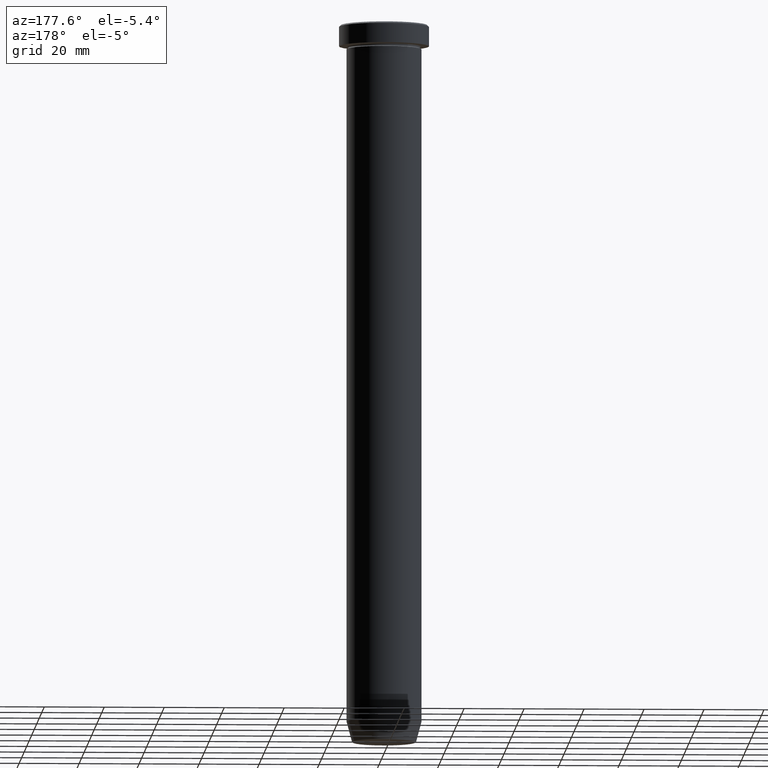
[diagram: clean part render]
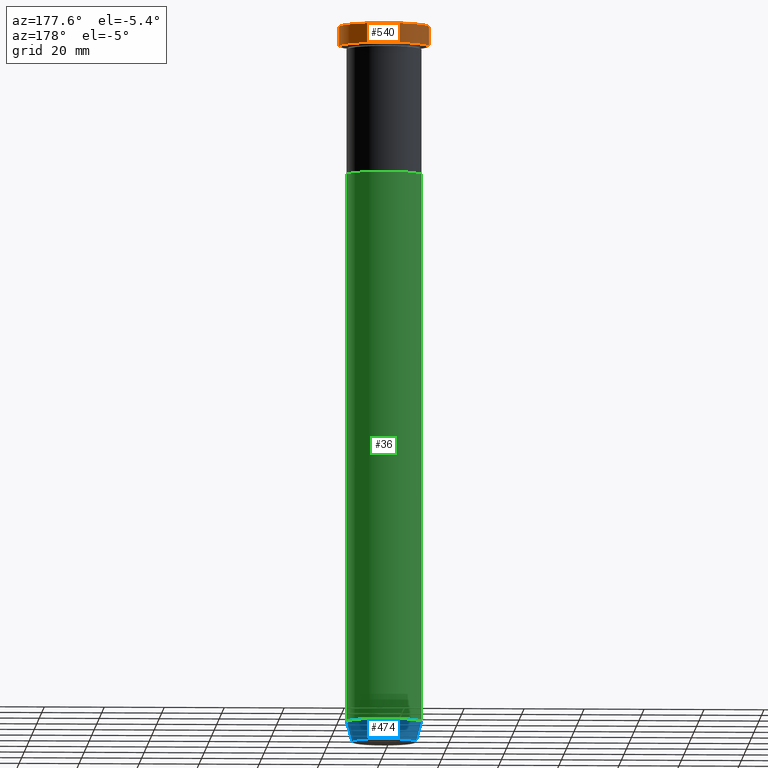
[diagram: same view with three faces highlighted in distinct colors, each labeled with its STEP entity id]
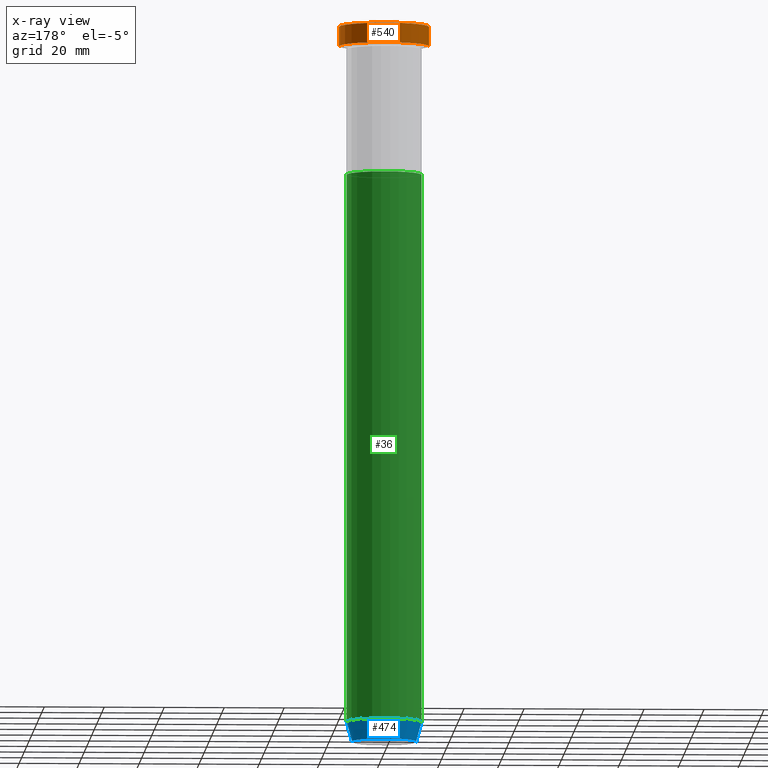
[diagram: x-ray of the same camera — body ghosted, the three highlighted faces saturated]
A machine part, auxiliary view with three faces highlighted in distinct colors.
The next image is the same camera in x-ray (body ghosted, the three faces saturated) — at least one of them is partly hidden behind the body in this view.
Their STEP definitions:

[orange] entity #540 — the highlighted cylindrical surface (partial cylindrical patch) has radius 15 mm, axis along (-0, -0, 1).
#13 = CARTESIAN_POINT ( 'NONE',  ( -15.00000000000000000, 1.836970198721029589E-15, -0.4999999999999831246 ) ) ;
#15 = CIRCLE ( 'NONE', #477, 15.00000000000000000 ) ;
#28 = VERTEX_POINT ( 'NONE', #357 ) ;
#43 = DIRECTION ( 'NONE',  ( 1.000000000000000000, 0.000000000000000000, 0.000000000000000000 ) ) ;
#67 = ORIENTED_EDGE ( 'NONE', *, *, #298, .F. ) ;
#94 = VERTEX_POINT ( 'NONE', #13 ) ;
#95 = DIRECTION ( 'NONE',  ( -0.000000000000000000, -0.000000000000000000, 1.000000000000000000 ) ) ;
#99 = VECTOR ( 'NONE', #255, 1000.000000000000000 ) ;
#100 = EDGE_LOOP ( 'NONE', ( #466, #419, #117, #67 ) ) ;
#117 = ORIENTED_EDGE ( 'NONE', *, *, #520, .T. ) ;
#132 = DIRECTION ( 'NONE',  ( -0.000000000000000000, -0.000000000000000000, 1.000000000000000000 ) ) ;
#152 = AXIS2_PLACEMENT_3D ( 'NONE', #529, #132, #391 ) ;
#163 = VECTOR ( 'NONE', #95, 1000.000000000000000 ) ;
#169 = CARTESIAN_POINT ( 'NONE',  ( 0.000000000000000000, 0.000000000000000000, 0.000000000000000000 ) ) ;
#211 = DIRECTION ( 'NONE',  ( 1.000000000000000000, 0.000000000000000000, 0.000000000000000000 ) ) ;
#221 = CYLINDRICAL_SURFACE ( 'NONE', #438, 15.00000000000000000 ) ;
#255 = DIRECTION ( 'NONE',  ( -0.000000000000000000, -0.000000000000000000, 1.000000000000000000 ) ) ;
#277 = CARTESIAN_POINT ( 'NONE',  ( 15.00000000000000000, 0.000000000000000000, 0.000000000000000000 ) ) ;
#298 = EDGE_CURVE ( 'NONE', #387, #313, #558, .T. ) ;
#299 = LINE ( 'NONE', #480, #99 ) ;
#313 = VERTEX_POINT ( 'NONE', #454 ) ;
#357 = CARTESIAN_POINT ( 'NONE',  ( -15.00000000000000000, 1.836970198721029589E-15, -6.999999999999999112 ) ) ;
#387 = VERTEX_POINT ( 'NONE', #494 ) ;
#391 = DIRECTION ( 'NONE',  ( 1.000000000000000000, 0.000000000000000000, 0.000000000000000000 ) ) ;
#419 = ORIENTED_EDGE ( 'NONE', *, *, #514, .T. ) ;
#438 = AXIS2_PLACEMENT_3D ( 'NONE', #169, #531, #43 ) ;
#454 = CARTESIAN_POINT ( 'NONE',  ( 15.00000000000000000, 0.000000000000000000, -0.4999999999999831246 ) ) ;
#466 = ORIENTED_EDGE ( 'NONE', *, *, #505, .T. ) ;
#477 = AXIS2_PLACEMENT_3D ( 'NONE', #537, #579, #211 ) ;
#480 = CARTESIAN_POINT ( 'NONE',  ( -15.00000000000000000, 1.836970198721029589E-15, 0.000000000000000000 ) ) ;
#494 = CARTESIAN_POINT ( 'NONE',  ( 15.00000000000000000, 0.000000000000000000, -6.999999999999999112 ) ) ;
#505 = EDGE_CURVE ( 'NONE', #387, #28, #585, .T. ) ;
#514 = EDGE_CURVE ( 'NONE', #28, #94, #299, .T. ) ;
#520 = EDGE_CURVE ( 'NONE', #94, #313, #15, .T. ) ;
#529 = CARTESIAN_POINT ( 'NONE',  ( 0.000000000000000000, 0.000000000000000000, -6.999999999999999112 ) ) ;
#531 = DIRECTION ( 'NONE',  ( -0.000000000000000000, -0.000000000000000000, 1.000000000000000000 ) ) ;
#537 = CARTESIAN_POINT ( 'NONE',  ( 0.000000000000000000, 0.000000000000000000, -0.4999999999999831246 ) ) ;
#540 = ADVANCED_FACE ( 'NONE', ( #578 ), #221, .T. ) ;
#558 = LINE ( 'NONE', #277, #163 ) ;
#578 = FACE_OUTER_BOUND ( 'NONE', #100, .T. ) ;
#579 = DIRECTION ( 'NONE',  ( 0.000000000000000000, 0.000000000000000000, -1.000000000000000000 ) ) ;
#585 = CIRCLE ( 'NONE', #152, 15.00000000000000000 ) ;

[blue] entity #474 — the highlighted conical surface has half-angle 15 deg.
#16 = DIRECTION ( 'NONE',  ( 1.000000000000000000, 0.000000000000000000, 0.000000000000000000 ) ) ;
#20 = DIRECTION ( 'NONE',  ( -0.000000000000000000, -0.000000000000000000, 1.000000000000000000 ) ) ;
#24 = DIRECTION ( 'NONE',  ( -1.000000000000000000, 0.000000000000000000, 0.000000000000000000 ) ) ;
#27 = DIRECTION ( 'NONE',  ( -0.2588190451025209060, 3.169619151431766790E-17, 0.9659258262890682012 ) ) ;
#44 = CARTESIAN_POINT ( 'NONE',  ( 12.50000000000000000, 0.000000000000000000, -232.9999999999999716 ) ) ;
#63 = ORIENTED_EDGE ( 'NONE', *, *, #384, .F. ) ;
#65 = ORIENTED_EDGE ( 'NONE', *, *, #96, .T. ) ;
#73 = FACE_OUTER_BOUND ( 'NONE', #238, .T. ) ;
#84 = CIRCLE ( 'NONE', #409, 12.50000000000000000 ) ;
#96 = EDGE_CURVE ( 'NONE', #282, #192, #296, .T. ) ;
#101 = CARTESIAN_POINT ( 'NONE',  ( -10.72365507213718949, 1.422038742429750318E-15, -239.6294095225512422 ) ) ;
#123 = EDGE_CURVE ( 'NONE', #458, #282, #393, .T. ) ;
#131 = AXIS2_PLACEMENT_3D ( 'NONE', #425, #20, #24 ) ;
#144 = DIRECTION ( 'NONE',  ( -0.000000000000000000, -0.000000000000000000, 1.000000000000000000 ) ) ;
#151 = VECTOR ( 'NONE', #573, 1000.000000000000000 ) ;
#161 = CARTESIAN_POINT ( 'NONE',  ( 10.62435565298213902, 0.000000000000000000, -240.0000000000000000 ) ) ;
#171 = CARTESIAN_POINT ( 'NONE',  ( 10.72365507213718949, 0.000000000000000000, -239.6294095225512422 ) ) ;
#175 = DIRECTION ( 'NONE',  ( -0.000000000000000000, -0.000000000000000000, 1.000000000000000000 ) ) ;
#192 = VERTEX_POINT ( 'NONE', #349 ) ;
#194 = CARTESIAN_POINT ( 'NONE',  ( 0.000000000000000000, 0.000000000000000000, -232.9999999999999716 ) ) ;
#225 = ORIENTED_EDGE ( 'NONE', *, *, #292, .F. ) ;
#238 = EDGE_LOOP ( 'NONE', ( #276, #65, #225, #63 ) ) ;
#246 = CARTESIAN_POINT ( 'NONE',  ( -10.62435565298213902, 1.301108314342766318E-15, -240.0000000000000000 ) ) ;
#276 = ORIENTED_EDGE ( 'NONE', *, *, #123, .T. ) ;
#282 = VERTEX_POINT ( 'NONE', #101 ) ;
#292 = EDGE_CURVE ( 'NONE', #360, #192, #84, .T. ) ;
#296 = LINE ( 'NONE', #246, #593 ) ;
#334 = AXIS2_PLACEMENT_3D ( 'NONE', #490, #175, #439 ) ;
#349 = CARTESIAN_POINT ( 'NONE',  ( -12.50000000000000000, 1.530808498934191521E-15, -232.9999999999999716 ) ) ;
#360 = VERTEX_POINT ( 'NONE', #44 ) ;
#384 = EDGE_CURVE ( 'NONE', #458, #360, #568, .T. ) ;
#393 = CIRCLE ( 'NONE', #131, 10.72365507213718949 ) ;
#409 = AXIS2_PLACEMENT_3D ( 'NONE', #194, #144, #16 ) ;
#425 = CARTESIAN_POINT ( 'NONE',  ( 0.000000000000000000, 0.000000000000000000, -239.6294095225512422 ) ) ;
#439 = DIRECTION ( 'NONE',  ( 1.000000000000000000, 0.000000000000000000, 0.000000000000000000 ) ) ;
#446 = CONICAL_SURFACE ( 'NONE', #334, 10.62435565298213902, 0.2617993877991495744 ) ;
#458 = VERTEX_POINT ( 'NONE', #171 ) ;
#474 = ADVANCED_FACE ( 'NONE', ( #73 ), #446, .T. ) ;
#490 = CARTESIAN_POINT ( 'NONE',  ( 0.000000000000000000, 0.000000000000000000, -240.0000000000000000 ) ) ;
#568 = LINE ( 'NONE', #161, #151 ) ;
#573 = DIRECTION ( 'NONE',  ( 0.2588190451025209060, 0.000000000000000000, 0.9659258262890682012 ) ) ;
#593 = VECTOR ( 'NONE', #27, 1000.000000000000000 ) ;

[green] entity #36 — the highlighted cylindrical surface (partial cylindrical patch) has radius 12.5 mm, axis along (-0, -0, 1).
#16 = DIRECTION ( 'NONE',  ( 1.000000000000000000, 0.000000000000000000, 0.000000000000000000 ) ) ;
#36 = ADVANCED_FACE ( 'NONE', ( #153 ), #563, .T. ) ;
#40 = CARTESIAN_POINT ( 'NONE',  ( 12.50000000000000000, 0.000000000000000000, -50.00000000000000000 ) ) ;
#44 = CARTESIAN_POINT ( 'NONE',  ( 12.50000000000000000, 0.000000000000000000, -232.9999999999999716 ) ) ;
#47 = ORIENTED_EDGE ( 'NONE', *, *, #292, .T. ) ;
#49 = AXIS2_PLACEMENT_3D ( 'NONE', #436, #268, #120 ) ;
#61 = DIRECTION ( 'NONE',  ( -0.000000000000000000, -0.000000000000000000, 1.000000000000000000 ) ) ;
#84 = CIRCLE ( 'NONE', #409, 12.50000000000000000 ) ;
#120 = DIRECTION ( 'NONE',  ( 1.000000000000000000, 0.000000000000000000, 0.000000000000000000 ) ) ;
#135 = EDGE_CURVE ( 'NONE', #192, #189, #337, .T. ) ;
#144 = DIRECTION ( 'NONE',  ( -0.000000000000000000, -0.000000000000000000, 1.000000000000000000 ) ) ;
#153 = FACE_OUTER_BOUND ( 'NONE', #597, .T. ) ;
#167 = DIRECTION ( 'NONE',  ( -0.000000000000000000, -0.000000000000000000, 1.000000000000000000 ) ) ;
#181 = VERTEX_POINT ( 'NONE', #40 ) ;
#189 = VERTEX_POINT ( 'NONE', #399 ) ;
#192 = VERTEX_POINT ( 'NONE', #349 ) ;
#194 = CARTESIAN_POINT ( 'NONE',  ( 0.000000000000000000, 0.000000000000000000, -232.9999999999999716 ) ) ;
#244 = VECTOR ( 'NONE', #502, 1000.000000000000000 ) ;
#268 = DIRECTION ( 'NONE',  ( -0.000000000000000000, -0.000000000000000000, 1.000000000000000000 ) ) ;
#291 = DIRECTION ( 'NONE',  ( 1.000000000000000000, 0.000000000000000000, 0.000000000000000000 ) ) ;
#292 = EDGE_CURVE ( 'NONE', #360, #192, #84, .T. ) ;
#316 = EDGE_CURVE ( 'NONE', #360, #181, #326, .T. ) ;
#320 = CARTESIAN_POINT ( 'NONE',  ( 12.50000000000000000, 0.000000000000000000, 0.000000000000000000 ) ) ;
#326 = LINE ( 'NONE', #320, #244 ) ;
#337 = LINE ( 'NONE', #574, #463 ) ;
#344 = ORIENTED_EDGE ( 'NONE', *, *, #135, .T. ) ;
#349 = CARTESIAN_POINT ( 'NONE',  ( -12.50000000000000000, 1.530808498934191521E-15, -232.9999999999999716 ) ) ;
#360 = VERTEX_POINT ( 'NONE', #44 ) ;
#399 = CARTESIAN_POINT ( 'NONE',  ( -12.50000000000000000, 1.530808498934191521E-15, -50.00000000000000000 ) ) ;
#409 = AXIS2_PLACEMENT_3D ( 'NONE', #194, #144, #16 ) ;
#415 = ORIENTED_EDGE ( 'NONE', *, *, #316, .F. ) ;
#431 = EDGE_CURVE ( 'NONE', #181, #189, #486, .T. ) ;
#436 = CARTESIAN_POINT ( 'NONE',  ( 0.000000000000000000, 0.000000000000000000, -50.00000000000000000 ) ) ;
#463 = VECTOR ( 'NONE', #167, 1000.000000000000000 ) ;
#469 = ORIENTED_EDGE ( 'NONE', *, *, #431, .F. ) ;
#486 = CIRCLE ( 'NONE', #49, 12.50000000000000000 ) ;
#502 = DIRECTION ( 'NONE',  ( -0.000000000000000000, -0.000000000000000000, 1.000000000000000000 ) ) ;
#522 = CARTESIAN_POINT ( 'NONE',  ( 0.000000000000000000, 0.000000000000000000, 0.000000000000000000 ) ) ;
#563 = CYLINDRICAL_SURFACE ( 'NONE', #569, 12.50000000000000000 ) ;
#569 = AXIS2_PLACEMENT_3D ( 'NONE', #522, #61, #291 ) ;
#574 = CARTESIAN_POINT ( 'NONE',  ( -12.50000000000000000, 1.530808498934191521E-15, 0.000000000000000000 ) ) ;
#597 = EDGE_LOOP ( 'NONE', ( #47, #344, #469, #415 ) ) ;